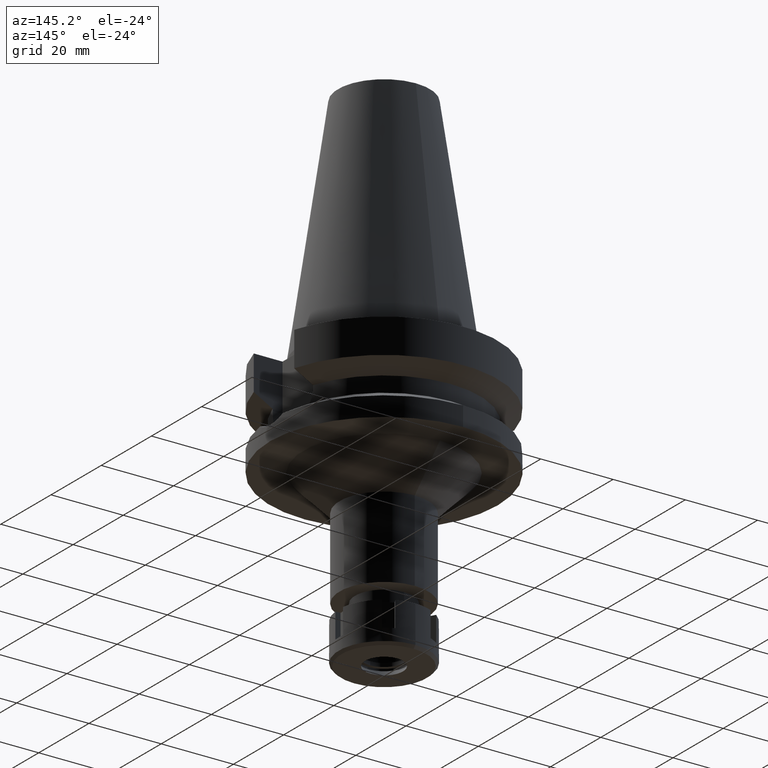
[diagram: clean part render]
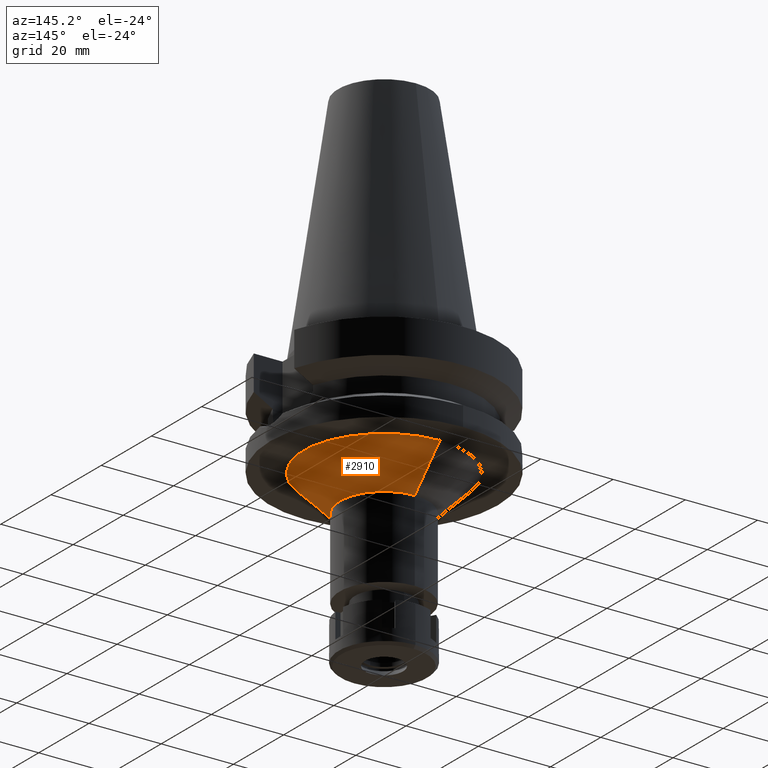
[diagram: same view with one face highlighted and labeled with its STEP entity id]
A machine part, auxiliary view. The second image highlights one B-rep face of the part: STEP entity #2910.
In plain terms, the highlighted conical surface has half-angle 45 deg.
Its self-contained STEP definition (entity closure, byte-faithful):
#257 = ORIENTED_EDGE ( 'NONE', *, *, #700, .T. ) ;
#422 = LINE ( 'NONE', #3548, #2106 ) ;
#454 = CIRCLE ( 'NONE', #2795, 22.25000000000000000 ) ;
#550 = CARTESIAN_POINT ( 'NONE',  ( 0.0000000000000000000, 0.0000000000000000000, -37.00000000000000000 ) ) ;
#562 = DIRECTION ( 'NONE',  ( 0.0000000000000000000, 0.0000000000000000000, 1.000000000000000000 ) ) ;
#564 = CIRCLE ( 'NONE', #1983, 12.25000000000000000 ) ;
#575 = CONICAL_SURFACE ( 'NONE', #1293, 17.25000000000000000, 0.7853981633972997312 ) ;
#700 = EDGE_CURVE ( 'NONE', #2347, #2865, #454, .T. ) ;
#814 = DIRECTION ( 'NONE',  ( 0.0000000000000000000, 0.0000000000000000000, -1.000000000000000000 ) ) ;
#816 = EDGE_CURVE ( 'NONE', #1611, #1878, #564, .T. ) ;
#998 = CARTESIAN_POINT ( 'NONE',  ( 0.0000000000000000000, 12.25000000000000000, -37.00000000000000000 ) ) ;
#1080 = EDGE_CURVE ( 'NONE', #2347, #1611, #422, .T. ) ;
#1293 = AXIS2_PLACEMENT_3D ( 'NONE', #1452, #562, #2552 ) ;
#1345 = EDGE_CURVE ( 'NONE', #2865, #1878, #2452, .T. ) ;
#1408 = ORIENTED_EDGE ( 'NONE', *, *, #1345, .T. ) ;
#1452 = CARTESIAN_POINT ( 'NONE',  ( 0.0000000000000000000, 0.0000000000000000000, -32.00000000000000000 ) ) ;
#1550 = CARTESIAN_POINT ( 'NONE',  ( 0.0000000000000000000, 22.25000000000000000, -27.00000000000000000 ) ) ;
#1611 = VERTEX_POINT ( 'NONE', #998 ) ;
#1802 = ORIENTED_EDGE ( 'NONE', *, *, #1080, .F. ) ;
#1878 = VERTEX_POINT ( 'NONE', #2751 ) ;
#1910 = DIRECTION ( 'NONE',  ( 0.0000000000000000000, 1.000000000000000000, 0.0000000000000000000 ) ) ;
#1926 = DIRECTION ( 'NONE',  ( 0.0000000000000000000, 1.000000000000000000, 0.0000000000000000000 ) ) ;
#1983 = AXIS2_PLACEMENT_3D ( 'NONE', #550, #814, #1926 ) ;
#2106 = VECTOR ( 'NONE', #3511, 1000.000000000000114 ) ;
#2179 = CARTESIAN_POINT ( 'NONE',  ( 0.0000000000000000000, -22.25000000000000000, -27.00000000000000000 ) ) ;
#2261 = CARTESIAN_POINT ( 'NONE',  ( 0.0000000000000000000, -22.25000000000000000, -27.00000000000000000 ) ) ;
#2347 = VERTEX_POINT ( 'NONE', #1550 ) ;
#2452 = LINE ( 'NONE', #2179, #2742 ) ;
#2502 = CARTESIAN_POINT ( 'NONE',  ( 0.0000000000000000000, 0.0000000000000000000, -27.00000000000000000 ) ) ;
#2522 = DIRECTION ( 'NONE',  ( 0.0000000000000000000, 0.0000000000000000000, -1.000000000000000000 ) ) ;
#2537 = FACE_OUTER_BOUND ( 'NONE', #3075, .T. ) ;
#2552 = DIRECTION ( 'NONE',  ( 0.0000000000000000000, 1.000000000000000000, 0.0000000000000000000 ) ) ;
#2742 = VECTOR ( 'NONE', #2790, 1000.000000000000114 ) ;
#2751 = CARTESIAN_POINT ( 'NONE',  ( 0.0000000000000000000, -12.25000000000000000, -37.00000000000000000 ) ) ;
#2790 = DIRECTION ( 'NONE',  ( 0.0000000000000000000, 0.7071067811865474617, -0.7071067811865474617 ) ) ;
#2795 = AXIS2_PLACEMENT_3D ( 'NONE', #2502, #2522, #1910 ) ;
#2865 = VERTEX_POINT ( 'NONE', #2261 ) ;
#2910 = ADVANCED_FACE ( 'NONE', ( #2537 ), #575, .T. ) ;
#3075 = EDGE_LOOP ( 'NONE', ( #257, #1408, #3355, #1802 ) ) ;
#3355 = ORIENTED_EDGE ( 'NONE', *, *, #816, .F. ) ;
#3511 = DIRECTION ( 'NONE',  ( 0.0000000000000000000, -0.7071067811865474617, -0.7071067811865474617 ) ) ;
#3548 = CARTESIAN_POINT ( 'NONE',  ( 0.0000000000000000000, 22.25000000000000000, -27.00000000000000000 ) ) ;